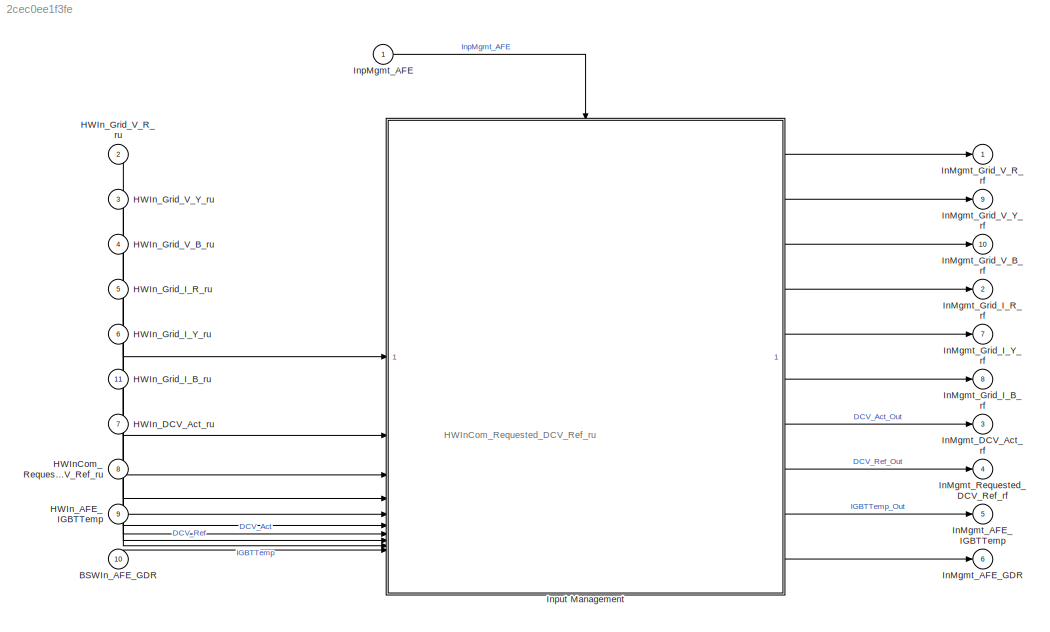
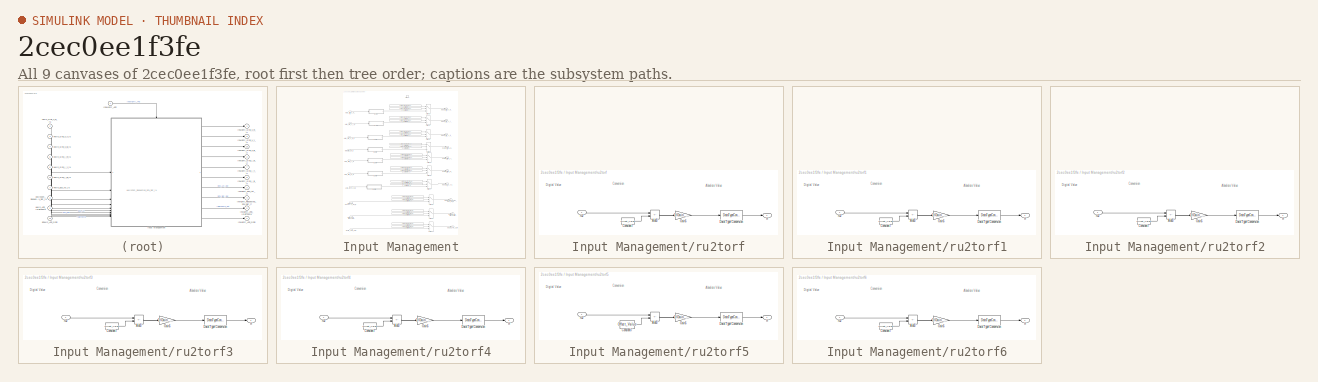
[diagram: thumbnail index - all 9 canvases of the model, root first then tree order]
MODEL slx_2cec0ee1f3fe
KIND model
BLOCK [Inport] BSWIn_AFE_GDR
  OutDataTypeStr = uint16
  Port = 10
BLOCK [Inport] HWInCom_Requested_DCV_Ref_ru
  OutDataTypeStr = uint16
  Port = 8
BLOCK [Inport] HWIn_AFE_IGBTTemp
  OutDataTypeStr = boolean
  Port = 9
BLOCK [Inport] HWIn_DCV_Act_ru
  OutDataTypeStr = uint16
  Port = 7
BLOCK [Inport] HWIn_Grid_I_B_ru
  OutDataTypeStr = uint16
  Port = 11
BLOCK [Inport] HWIn_Grid_I_R_ru
  OutDataTypeStr = uint16
  Port = 5
BLOCK [Inport] HWIn_Grid_I_Y_ru
  OutDataTypeStr = uint16
  Port = 6
BLOCK [Inport] HWIn_Grid_V_B_ru
  OutDataTypeStr = uint16
  Port = 4
BLOCK [Inport] HWIn_Grid_V_R_ru
  OutDataTypeStr = uint16
  Port = 2
BLOCK [Inport] HWIn_Grid_V_Y_ru
  OutDataTypeStr = uint16
  Port = 3
BLOCK [Outport] InMgmt_AFE_GDR
  Port = 6
  VectorParamsAs1DForOutWhenUnconnected = off
BLOCK [Outport] InMgmt_AFE_IGBTTemp
  OutDataTypeStr = boolean
  Port = 5
  VectorParamsAs1DForOutWhenUnconnected = off
BLOCK [Outport] InMgmt_DCV_Act_rf
  OutDataTypeStr = uint16
  Port = 3
  VectorParamsAs1DForOutWhenUnconnected = off
BLOCK [Outport] InMgmt_Grid_I_B_rf
  Port = 8
  VectorParamsAs1DForOutWhenUnconnected = off
BLOCK [Outport] InMgmt_Grid_I_R_rf
  Port = 2
  VectorParamsAs1DForOutWhenUnconnected = off
BLOCK [Outport] InMgmt_Grid_I_Y_rf
  Port = 7
  VectorParamsAs1DForOutWhenUnconnected = off
BLOCK [Outport] InMgmt_Grid_V_B_rf
  Port = 10
  VectorParamsAs1DForOutWhenUnconnected = off
BLOCK [Outport] InMgmt_Grid_V_R_rf
  VectorParamsAs1DForOutWhenUnconnected = off
BLOCK [Outport] InMgmt_Grid_V_Y_rf
  Port = 9
  VectorParamsAs1DForOutWhenUnconnected = off
BLOCK [Outport] InMgmt_Requested_DCV_Ref_rf
  OutDataTypeStr = uint16
  Port = 4
  VectorParamsAs1DForOutWhenUnconnected = off
BLOCK [Inport] InpMgmt_AFE
  Description = Inverter HVDC voltage
  OutMax = 1000
  OutMin = 0
  OutputFunctionCall = on
  PortDimensions = 1
  SampleTime = 0.001
  SamplingMode = Sample based
  SignalType = real
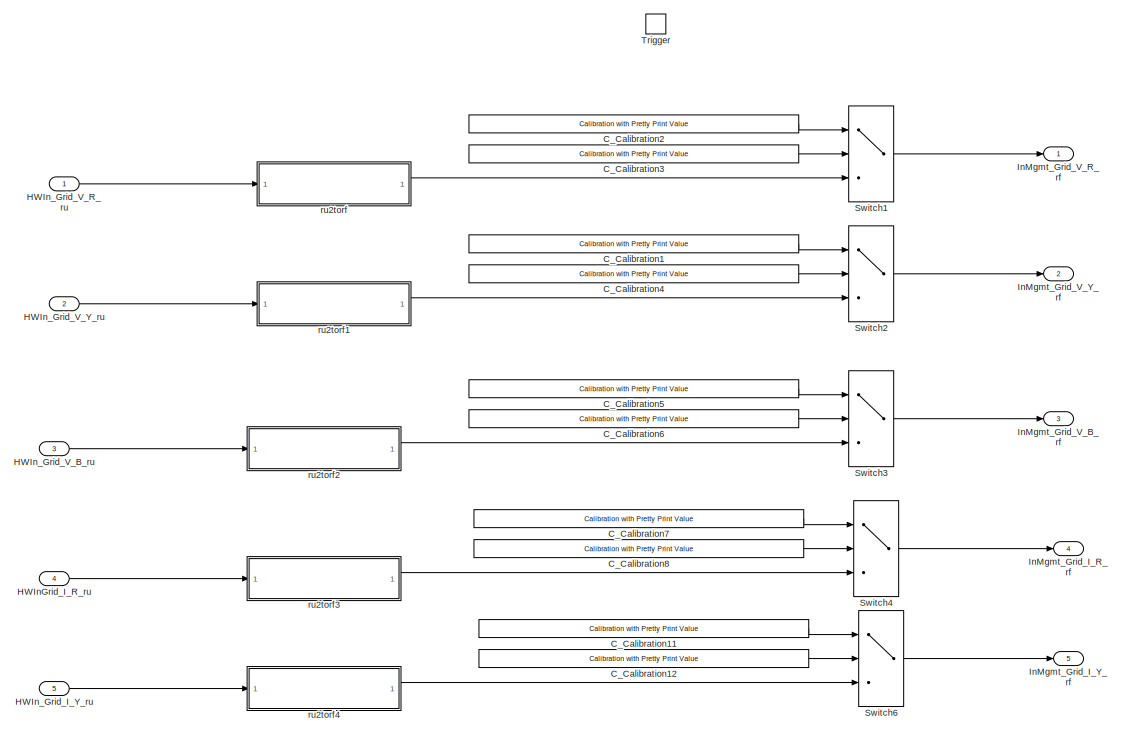
[diagram: Input Management - part 1/2, full width, top band]
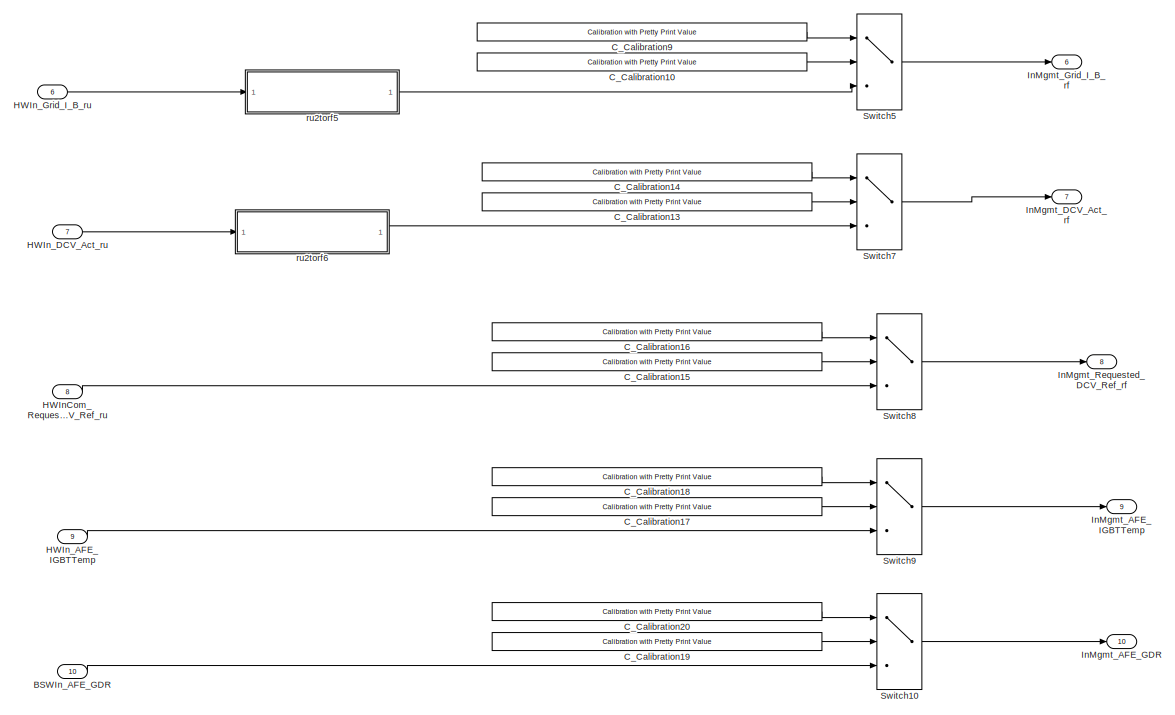
[diagram: Input Management - part 2/2, full width, bottom band]
BLOCK [SubSystem] Input Management
BLOCK [Inport] Input Management/BSWIn_AFE_GDR
  Port = 10
BLOCK [Reference] Input Management/C_Calibration1  REF=common_lib/IO/Calibration with Pretty
Print Value
  SourceBlock = common_lib/IO/Calibration with Pretty\nPrint Value
  SourceProductName = Common Library Blocks
  SourceType = Calibratible Input
BLOCK [Reference] Input Management/C_Calibration10  REF=common_lib/IO/Calibration with Pretty
Print Value
  SourceBlock = common_lib/IO/Calibration with Pretty\nPrint Value
  SourceProductName = Common Library Blocks
  SourceType = Calibratible Input
BLOCK [Reference] Input Management/C_Calibration11  REF=common_lib/IO/Calibration with Pretty
Print Value
  SourceBlock = common_lib/IO/Calibration with Pretty\nPrint Value
  SourceProductName = Common Library Blocks
  SourceType = Calibratible Input
BLOCK [Reference] Input Management/C_Calibration12  REF=common_lib/IO/Calibration with Pretty
Print Value
  SourceBlock = common_lib/IO/Calibration with Pretty\nPrint Value
  SourceProductName = Common Library Blocks
  SourceType = Calibratible Input
BLOCK [Reference] Input Management/C_Calibration13  REF=common_lib/IO/Calibration with Pretty
Print Value
  SourceBlock = common_lib/IO/Calibration with Pretty\nPrint Value
  SourceProductName = Common Library Blocks
  SourceType = Calibratible Input
BLOCK [Reference] Input Management/C_Calibration14  REF=common_lib/IO/Calibration with Pretty
Print Value
  SourceBlock = common_lib/IO/Calibration with Pretty\nPrint Value
  SourceProductName = Common Library Blocks
  SourceType = Calibratible Input
BLOCK [Reference] Input Management/C_Calibration15  REF=common_lib/IO/Calibration with Pretty
Print Value
  SourceBlock = common_lib/IO/Calibration with Pretty\nPrint Value
  SourceProductName = Common Library Blocks
  SourceType = Calibratible Input
BLOCK [Reference] Input Management/C_Calibration16  REF=common_lib/IO/Calibration with Pretty
Print Value
  SourceBlock = common_lib/IO/Calibration with Pretty\nPrint Value
  SourceProductName = Common Library Blocks
  SourceType = Calibratible Input
BLOCK [Reference] Input Management/C_Calibration17  REF=common_lib/IO/Calibration with Pretty
Print Value
  SourceBlock = common_lib/IO/Calibration with Pretty\nPrint Value
  SourceProductName = Common Library Blocks
  SourceType = Calibratible Input
BLOCK [Reference] Input Management/C_Calibration18  REF=common_lib/IO/Calibration with Pretty
Print Value
  SourceBlock = common_lib/IO/Calibration with Pretty\nPrint Value
  SourceProductName = Common Library Blocks
  SourceType = Calibratible Input
BLOCK [Reference] Input Management/C_Calibration19  REF=common_lib/IO/Calibration with Pretty
Print Value
  SourceBlock = common_lib/IO/Calibration with Pretty\nPrint Value
  SourceProductName = Common Library Blocks
  SourceType = Calibratible Input
BLOCK [Reference] Input Management/C_Calibration2  REF=common_lib/IO/Calibration with Pretty
Print Value
  SourceBlock = common_lib/IO/Calibration with Pretty\nPrint Value
  SourceProductName = Common Library Blocks
  SourceType = Calibratible Input
BLOCK [Reference] Input Management/C_Calibration20  REF=common_lib/IO/Calibration with Pretty
Print Value
  SourceBlock = common_lib/IO/Calibration with Pretty\nPrint Value
  SourceProductName = Common Library Blocks
  SourceType = Calibratible Input
BLOCK [Reference] Input Management/C_Calibration3  REF=common_lib/IO/Calibration with Pretty
Print Value
  SourceBlock = common_lib/IO/Calibration with Pretty\nPrint Value
  SourceProductName = Common Library Blocks
  SourceType = Calibratible Input
BLOCK [Reference] Input Management/C_Calibration4  REF=common_lib/IO/Calibration with Pretty
Print Value
  SourceBlock = common_lib/IO/Calibration with Pretty\nPrint Value
  SourceProductName = Common Library Blocks
  SourceType = Calibratible Input
BLOCK [Reference] Input Management/C_Calibration5  REF=common_lib/IO/Calibration with Pretty
Print Value
  SourceBlock = common_lib/IO/Calibration with Pretty\nPrint Value
  SourceProductName = Common Library Blocks
  SourceType = Calibratible Input
BLOCK [Reference] Input Management/C_Calibration6  REF=common_lib/IO/Calibration with Pretty
Print Value
  SourceBlock = common_lib/IO/Calibration with Pretty\nPrint Value
  SourceProductName = Common Library Blocks
  SourceType = Calibratible Input
BLOCK [Reference] Input Management/C_Calibration7  REF=common_lib/IO/Calibration with Pretty
Print Value
  SourceBlock = common_lib/IO/Calibration with Pretty\nPrint Value
  SourceProductName = Common Library Blocks
  SourceType = Calibratible Input
BLOCK [Reference] Input Management/C_Calibration8  REF=common_lib/IO/Calibration with Pretty
Print Value
  SourceBlock = common_lib/IO/Calibration with Pretty\nPrint Value
  SourceProductName = Common Library Blocks
  SourceType = Calibratible Input
BLOCK [Reference] Input Management/C_Calibration9  REF=common_lib/IO/Calibration with Pretty
Print Value
  SourceBlock = common_lib/IO/Calibration with Pretty\nPrint Value
  SourceProductName = Common Library Blocks
  SourceType = Calibratible Input
BLOCK [Inport] Input Management/HWInCom_Requested_DCV_Ref_ru
  Port = 8
BLOCK [Inport] Input Management/HWInGrid_I_R_ru
  Port = 4
BLOCK [Inport] Input Management/HWIn_AFE_IGBTTemp
  Port = 9
BLOCK [Inport] Input Management/HWIn_DCV_Act_ru
  Port = 7
BLOCK [Inport] Input Management/HWIn_Grid_I_B_ru
  Port = 6
BLOCK [Inport] Input Management/HWIn_Grid_I_Y_ru
  Port = 5
BLOCK [Inport] Input Management/HWIn_Grid_V_B_ru
  Port = 3
BLOCK [Inport] Input Management/HWIn_Grid_V_R_ru
BLOCK [Inport] Input Management/HWIn_Grid_V_Y_ru
  Port = 2
BLOCK [Outport] Input Management/InMgmt_AFE_GDR
  OutDataTypeStr = single
  Port = 10
BLOCK [Outport] Input Management/InMgmt_AFE_IGBTTemp
  Port = 9
BLOCK [Outport] Input Management/InMgmt_DCV_Act_rf
  Port = 7
BLOCK [Outport] Input Management/InMgmt_Grid_I_B_rf
  OutDataTypeStr = single
  Port = 6
BLOCK [Outport] Input Management/InMgmt_Grid_I_R_rf
  OutDataTypeStr = single
  Port = 4
BLOCK [Outport] Input Management/InMgmt_Grid_I_Y_rf
  OutDataTypeStr = single
  Port = 5
BLOCK [Outport] Input Management/InMgmt_Grid_V_B_rf
  OutDataTypeStr = single
  Port = 3
BLOCK [Outport] Input Management/InMgmt_Grid_V_R_rf
  OutDataTypeStr = single
BLOCK [Outport] Input Management/InMgmt_Grid_V_Y_rf
  OutDataTypeStr = single
  Port = 2
BLOCK [Outport] Input Management/InMgmt_Requested_DCV_Ref_rf
  Port = 8
BLOCK [Switch] Input Management/Switch1
  Criteria = u2 ~= 0
  InputSameDT = off
  SaturateOnIntegerOverflow = off
BLOCK [Switch] Input Management/Switch10
  Criteria = u2 ~= 0
  InputSameDT = off
  SaturateOnIntegerOverflow = off
BLOCK [Switch] Input Management/Switch2
  Criteria = u2 ~= 0
  InputSameDT = off
  SaturateOnIntegerOverflow = off
BLOCK [Switch] Input Management/Switch3
  Criteria = u2 ~= 0
  InputSameDT = off
  SaturateOnIntegerOverflow = off
BLOCK [Switch] Input Management/Switch4
  Criteria = u2 ~= 0
  InputSameDT = off
  SaturateOnIntegerOverflow = off
BLOCK [Switch] Input Management/Switch5
  Criteria = u2 ~= 0
  InputSameDT = off
  SaturateOnIntegerOverflow = off
BLOCK [Switch] Input Management/Switch6
  Criteria = u2 ~= 0
  InputSameDT = off
  SaturateOnIntegerOverflow = off
BLOCK [Switch] Input Management/Switch7
  Criteria = u2 ~= 0
  InputSameDT = off
  SaturateOnIntegerOverflow = off
BLOCK [Switch] Input Management/Switch8
  Criteria = u2 ~= 0
  InputSameDT = off
  SaturateOnIntegerOverflow = off
BLOCK [Switch] Input Management/Switch9
  Criteria = u2 ~= 0
  InputSameDT = off
  SaturateOnIntegerOverflow = off
BLOCK [TriggerPort] Input Management/Trigger
  PortDimensions = 1
  SampleTime = -1
  SampleTimeType = periodic
  StatesWhenEnabling = held
  TriggerType = function-call
  VariantControl = (inherit)
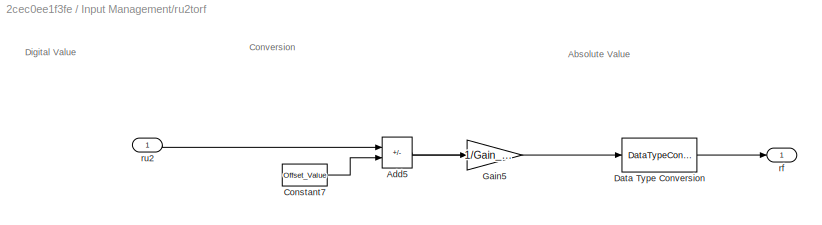
BLOCK [SubSystem] Input Management/ru2torf
  Commented = through
BLOCK [Sum] Input Management/ru2torf/Add5
  IconShape = rectangular
  Inputs = +-
BLOCK [Constant] Input Management/ru2torf/Constant7
  Value = Offset_Value
BLOCK [DataTypeConversion] Input Management/ru2torf/Data Type Conversion
  OutDataTypeStr = single
  RndMeth = Floor
  SaturateOnIntegerOverflow = off
BLOCK [Gain] Input Management/ru2torf/Gain5
  Gain = 1/Gain_Value
BLOCK [Outport] Input Management/ru2torf/rf
  OutDataTypeStr = single
BLOCK [Inport] Input Management/ru2torf/ru2
BLOCK [SubSystem] Input Management/ru2torf1
  Commented = through
BLOCK [Sum] Input Management/ru2torf1/Add5
  IconShape = rectangular
  Inputs = +-
BLOCK [Constant] Input Management/ru2torf1/Constant7
  Value = Offset_Value
BLOCK [DataTypeConversion] Input Management/ru2torf1/Data Type Conversion
  OutDataTypeStr = single
  RndMeth = Floor
  SaturateOnIntegerOverflow = off
BLOCK [Gain] Input Management/ru2torf1/Gain5
  Gain = 1/Gain_Value
BLOCK [Outport] Input Management/ru2torf1/rf
  OutDataTypeStr = single
BLOCK [Inport] Input Management/ru2torf1/ru2
BLOCK [SubSystem] Input Management/ru2torf2
  Commented = through
BLOCK [Sum] Input Management/ru2torf2/Add5
  IconShape = rectangular
  Inputs = +-
BLOCK [Constant] Input Management/ru2torf2/Constant7
  Value = Offset_Value
BLOCK [DataTypeConversion] Input Management/ru2torf2/Data Type Conversion
  OutDataTypeStr = single
  RndMeth = Floor
  SaturateOnIntegerOverflow = off
BLOCK [Gain] Input Management/ru2torf2/Gain5
  Gain = 1/Gain_Value
BLOCK [Outport] Input Management/ru2torf2/rf
  OutDataTypeStr = single
BLOCK [Inport] Input Management/ru2torf2/ru2
BLOCK [SubSystem] Input Management/ru2torf3
  Commented = through
BLOCK [Sum] Input Management/ru2torf3/Add5
  IconShape = rectangular
  Inputs = +-
BLOCK [Constant] Input Management/ru2torf3/Constant7
  Value = Offset_Value
BLOCK [DataTypeConversion] Input Management/ru2torf3/Data Type Conversion
  OutDataTypeStr = single
  RndMeth = Floor
  SaturateOnIntegerOverflow = off
BLOCK [Gain] Input Management/ru2torf3/Gain5
  Gain = 1/Gain_Value
BLOCK [Outport] Input Management/ru2torf3/rf
  OutDataTypeStr = single
BLOCK [Inport] Input Management/ru2torf3/ru2
BLOCK [SubSystem] Input Management/ru2torf4
  Commented = through
BLOCK [Sum] Input Management/ru2torf4/Add5
  IconShape = rectangular
  Inputs = +-
BLOCK [Constant] Input Management/ru2torf4/Constant7
  Value = Offset_Value
BLOCK [DataTypeConversion] Input Management/ru2torf4/Data Type Conversion
  OutDataTypeStr = single
  RndMeth = Floor
  SaturateOnIntegerOverflow = off
BLOCK [Gain] Input Management/ru2torf4/Gain5
  Gain = 1/Gain_Value
BLOCK [Outport] Input Management/ru2torf4/rf
  OutDataTypeStr = single
BLOCK [Inport] Input Management/ru2torf4/ru2
BLOCK [SubSystem] Input Management/ru2torf5
  Commented = through
BLOCK [Sum] Input Management/ru2torf5/Add5
  IconShape = rectangular
  Inputs = +-
BLOCK [Constant] Input Management/ru2torf5/Constant7
  Value = Offset_Value
BLOCK [DataTypeConversion] Input Management/ru2torf5/Data Type Conversion
  OutDataTypeStr = single
  RndMeth = Floor
  SaturateOnIntegerOverflow = off
BLOCK [Gain] Input Management/ru2torf5/Gain5
  Gain = 1/Gain_Value
BLOCK [Outport] Input Management/ru2torf5/rf
  OutDataTypeStr = single
BLOCK [Inport] Input Management/ru2torf5/ru2
BLOCK [SubSystem] Input Management/ru2torf6
  Commented = through
BLOCK [Sum] Input Management/ru2torf6/Add5
  IconShape = rectangular
  Inputs = +-
BLOCK [Constant] Input Management/ru2torf6/Constant7
  Value = Offset_Value
BLOCK [DataTypeConversion] Input Management/ru2torf6/Data Type Conversion
  OutDataTypeStr = uint16
  RndMeth = Floor
  SaturateOnIntegerOverflow = off
BLOCK [Gain] Input Management/ru2torf6/Gain5
  Gain = 1/Gain_Value
BLOCK [Outport] Input Management/ru2torf6/rf
BLOCK [Inport] Input Management/ru2torf6/ru2
ANNOTATION (root): HWInCom_Requested_DCV_Ref_ru
ANNOTATION Input Management/ru2torf: Absolute Value
ANNOTATION Input Management/ru2torf: Conversion
ANNOTATION Input Management/ru2torf: Digital Value
ANNOTATION Input Management/ru2torf1: Absolute Value
ANNOTATION Input Management/ru2torf1: Conversion
ANNOTATION Input Management/ru2torf1: Digital Value
ANNOTATION Input Management/ru2torf2: Absolute Value
ANNOTATION Input Management/ru2torf2: Conversion
ANNOTATION Input Management/ru2torf2: Digital Value
ANNOTATION Input Management/ru2torf3: Absolute Value
ANNOTATION Input Management/ru2torf3: Conversion
ANNOTATION Input Management/ru2torf3: Digital Value
ANNOTATION Input Management/ru2torf4: Absolute Value
ANNOTATION Input Management/ru2torf4: Conversion
ANNOTATION Input Management/ru2torf4: Digital Value
ANNOTATION Input Management/ru2torf5: Absolute Value
ANNOTATION Input Management/ru2torf5: Conversion
ANNOTATION Input Management/ru2torf5: Digital Value
ANNOTATION Input Management/ru2torf6: Absolute Value
ANNOTATION Input Management/ru2torf6: Conversion
ANNOTATION Input Management/ru2torf6: Digital Value
LINE BSWIn_AFE_GDR:1 -> Input Management:10
LINE HWInCom_Requested_DCV_Ref_ru:1 -> Input Management:8
LINE HWIn_AFE_IGBTTemp:1 -> Input Management:9
LINE HWIn_DCV_Act_ru:1 -> Input Management:7
LINE HWIn_Grid_I_B_ru:1 -> Input Management:6
LINE HWIn_Grid_I_R_ru:1 -> Input Management:4
LINE HWIn_Grid_I_Y_ru:1 -> Input Management:5
LINE HWIn_Grid_V_B_ru:1 -> Input Management:3
LINE HWIn_Grid_V_R_ru:1 -> Input Management:1
LINE HWIn_Grid_V_Y_ru:1 -> Input Management:2
LINE InpMgmt_AFE:1 -> Input Management:trigger
LINE Input Management/BSWIn_AFE_GDR:1 -> Input Management/Switch10:3
LINE Input Management/C_Calibration10:1 -> Input Management/Switch5:2
LINE Input Management/C_Calibration11:1 -> Input Management/Switch6:1
LINE Input Management/C_Calibration12:1 -> Input Management/Switch6:2
LINE Input Management/C_Calibration13:1 -> Input Management/Switch7:2
LINE Input Management/C_Calibration14:1 -> Input Management/Switch7:1
LINE Input Management/C_Calibration15:1 -> Input Management/Switch8:2
LINE Input Management/C_Calibration16:1 -> Input Management/Switch8:1
LINE Input Management/C_Calibration17:1 -> Input Management/Switch9:2
LINE Input Management/C_Calibration18:1 -> Input Management/Switch9:1
LINE Input Management/C_Calibration19:1 -> Input Management/Switch10:2
LINE Input Management/C_Calibration1:1 -> Input Management/Switch2:1
LINE Input Management/C_Calibration20:1 -> Input Management/Switch10:1
LINE Input Management/C_Calibration2:1 -> Input Management/Switch1:1
LINE Input Management/C_Calibration3:1 -> Input Management/Switch1:2
LINE Input Management/C_Calibration4:1 -> Input Management/Switch2:2
LINE Input Management/C_Calibration5:1 -> Input Management/Switch3:1
LINE Input Management/C_Calibration6:1 -> Input Management/Switch3:2
LINE Input Management/C_Calibration7:1 -> Input Management/Switch4:1
LINE Input Management/C_Calibration8:1 -> Input Management/Switch4:2
LINE Input Management/C_Calibration9:1 -> Input Management/Switch5:1
LINE Input Management/HWInCom_Requested_DCV_Ref_ru:1 -> Input Management/Switch8:3
LINE Input Management/HWInGrid_I_R_ru:1 -> Input Management/ru2torf3:1
LINE Input Management/HWIn_AFE_IGBTTemp:1 -> Input Management/Switch9:3
LINE Input Management/HWIn_DCV_Act_ru:1 -> Input Management/ru2torf6:1
LINE Input Management/HWIn_Grid_I_B_ru:1 -> Input Management/ru2torf5:1
LINE Input Management/HWIn_Grid_I_Y_ru:1 -> Input Management/ru2torf4:1
LINE Input Management/HWIn_Grid_V_B_ru:1 -> Input Management/ru2torf2:1
LINE Input Management/HWIn_Grid_V_R_ru:1 -> Input Management/ru2torf:1
LINE Input Management/HWIn_Grid_V_Y_ru:1 -> Input Management/ru2torf1:1
LINE Input Management/Switch10:1 -> Input Management/InMgmt_AFE_GDR:1
LINE Input Management/Switch1:1 -> Input Management/InMgmt_Grid_V_R_rf:1
LINE Input Management/Switch2:1 -> Input Management/InMgmt_Grid_V_Y_rf:1
LINE Input Management/Switch3:1 -> Input Management/InMgmt_Grid_V_B_rf:1
LINE Input Management/Switch4:1 -> Input Management/InMgmt_Grid_I_R_rf:1
LINE Input Management/Switch5:1 -> Input Management/InMgmt_Grid_I_B_rf:1
LINE Input Management/Switch6:1 -> Input Management/InMgmt_Grid_I_Y_rf:1
LINE Input Management/Switch7:1 -> Input Management/InMgmt_DCV_Act_rf:1
LINE Input Management/Switch8:1 -> Input Management/InMgmt_Requested_DCV_Ref_rf:1
LINE Input Management/Switch9:1 -> Input Management/InMgmt_AFE_IGBTTemp:1
LINE Input Management/ru2torf/Add5:1 -> Input Management/ru2torf/Gain5:1
LINE Input Management/ru2torf/Constant7:1 -> Input Management/ru2torf/Add5:2
LINE Input Management/ru2torf/Data Type Conversion:1 -> Input Management/ru2torf/rf:1
LINE Input Management/ru2torf/Gain5:1 -> Input Management/ru2torf/Data Type Conversion:1
LINE Input Management/ru2torf/ru2:1 -> Input Management/ru2torf/Add5:1
LINE Input Management/ru2torf1/Add5:1 -> Input Management/ru2torf1/Gain5:1
LINE Input Management/ru2torf1/Constant7:1 -> Input Management/ru2torf1/Add5:2
LINE Input Management/ru2torf1/Data Type Conversion:1 -> Input Management/ru2torf1/rf:1
LINE Input Management/ru2torf1/Gain5:1 -> Input Management/ru2torf1/Data Type Conversion:1
LINE Input Management/ru2torf1/ru2:1 -> Input Management/ru2torf1/Add5:1
LINE Input Management/ru2torf1:1 -> Input Management/Switch2:3
LINE Input Management/ru2torf2/Add5:1 -> Input Management/ru2torf2/Gain5:1
LINE Input Management/ru2torf2/Constant7:1 -> Input Management/ru2torf2/Add5:2
LINE Input Management/ru2torf2/Data Type Conversion:1 -> Input Management/ru2torf2/rf:1
LINE Input Management/ru2torf2/Gain5:1 -> Input Management/ru2torf2/Data Type Conversion:1
LINE Input Management/ru2torf2/ru2:1 -> Input Management/ru2torf2/Add5:1
LINE Input Management/ru2torf2:1 -> Input Management/Switch3:3
LINE Input Management/ru2torf3/Add5:1 -> Input Management/ru2torf3/Gain5:1
LINE Input Management/ru2torf3/Constant7:1 -> Input Management/ru2torf3/Add5:2
LINE Input Management/ru2torf3/Data Type Conversion:1 -> Input Management/ru2torf3/rf:1
LINE Input Management/ru2torf3/Gain5:1 -> Input Management/ru2torf3/Data Type Conversion:1
LINE Input Management/ru2torf3/ru2:1 -> Input Management/ru2torf3/Add5:1
LINE Input Management/ru2torf3:1 -> Input Management/Switch4:3
LINE Input Management/ru2torf4/Add5:1 -> Input Management/ru2torf4/Gain5:1
LINE Input Management/ru2torf4/Constant7:1 -> Input Management/ru2torf4/Add5:2
LINE Input Management/ru2torf4/Data Type Conversion:1 -> Input Management/ru2torf4/rf:1
LINE Input Management/ru2torf4/Gain5:1 -> Input Management/ru2torf4/Data Type Conversion:1
LINE Input Management/ru2torf4/ru2:1 -> Input Management/ru2torf4/Add5:1
LINE Input Management/ru2torf4:1 -> Input Management/Switch6:3
LINE Input Management/ru2torf5/Add5:1 -> Input Management/ru2torf5/Gain5:1
LINE Input Management/ru2torf5/Constant7:1 -> Input Management/ru2torf5/Add5:2
LINE Input Management/ru2torf5/Data Type Conversion:1 -> Input Management/ru2torf5/rf:1
LINE Input Management/ru2torf5/Gain5:1 -> Input Management/ru2torf5/Data Type Conversion:1
LINE Input Management/ru2torf5/ru2:1 -> Input Management/ru2torf5/Add5:1
LINE Input Management/ru2torf5:1 -> Input Management/Switch5:3
LINE Input Management/ru2torf6/Add5:1 -> Input Management/ru2torf6/Gain5:1
LINE Input Management/ru2torf6/Constant7:1 -> Input Management/ru2torf6/Add5:2
LINE Input Management/ru2torf6/Data Type Conversion:1 -> Input Management/ru2torf6/rf:1
LINE Input Management/ru2torf6/Gain5:1 -> Input Management/ru2torf6/Data Type Conversion:1
LINE Input Management/ru2torf6/ru2:1 -> Input Management/ru2torf6/Add5:1
LINE Input Management/ru2torf6:1 -> Input Management/Switch7:3
LINE Input Management/ru2torf:1 -> Input Management/Switch1:3
LINE Input Management:1 -> InMgmt_Grid_V_R_rf:1
LINE Input Management:10 -> InMgmt_AFE_GDR:1
LINE Input Management:2 -> InMgmt_Grid_V_Y_rf:1
LINE Input Management:3 -> InMgmt_Grid_V_B_rf:1
LINE Input Management:4 -> InMgmt_Grid_I_R_rf:1
LINE Input Management:5 -> InMgmt_Grid_I_Y_rf:1
LINE Input Management:6 -> InMgmt_Grid_I_B_rf:1
LINE Input Management:7 -> InMgmt_DCV_Act_rf:1
LINE Input Management:8 -> InMgmt_Requested_DCV_Ref_rf:1
LINE Input Management:9 -> InMgmt_AFE_IGBTTemp:1
CHART Test Sequence states=4 transitions=4
  STATE_LABEL "BUCK_Diagc_INIT\ncoder.extrinsic('assignin');\ncoder.extrinsic('getSection');\ncoder.extrinsic('set_param');\ncoder.extrinsic('get_param');\ncoder.extrinsic('Simulink.data.dictionary.open');\ncoder.extrinsic('discardChanges');\nSWCDictonary = Simulink.data.dictionary.open('SWC_InpMgmt_AFE.sldd');\nmodelData = getSection(SWCDictonary,'Design Data');\nmodelWorkSpace = get_param('SWC_InpMgmt_AFE','ModelWorksp...<+340ch>"
  STATE_LABEL 'BUCK_Diagc_INIT_SetValues\nHWIn_DCV_Act_ru=uint16(2149);'
  STATE_LABEL "BUCK_Diagc_INIT_VerifyOutputs\nHWIn_DCV_Act_ru=uint16(2149);\nverify(InMgmt_DCV_Act_rf==uint16(2149),'TestCase:BUCK_Diagc_INIT_VerifyOutputs_Verify1','Current Output Value:InMgmt_DCV_Act_rf = %d',single(InMgmt_DCV_Act_rf));\nendTest = true;"
  STATE_LABEL '[\nafter(400,msec)\n]'
  STATE_LABEL 'BUCK_Diagc_INIT_SetValues\nHWIn_DCV_Act_ru=uint16(2149);'
  STATE_LABEL "BUCK_Diagc_INIT_VerifyOutputs\nHWIn_DCV_Act_ru=uint16(2149);\nverify(InMgmt_DCV_Act_rf==uint16(2149),'TestCase:BUCK_Diagc_INIT_VerifyOutputs_Verify1','Current Output Value:InMgmt_DCV_Act_rf = %d',single(InMgmt_DCV_Act_rf));\nendTest = true;"
  STATE_LABEL "Terminate\nendTest = false;\ndiscardChanges(SWCDictonary);\nset_param('Inmgmt','SimulationCommand','stop');"
CHART Test Sequence states=10 transitions=10
  STATE_LABEL "InMgmt_AFE_INIT\ncoder.extrinsic('assignin');\ncoder.extrinsic('getSection');\ncoder.extrinsic('set_param');\ncoder.extrinsic('get_param');\ncoder.extrinsic('Simulink.data.dictionary.open');\ncoder.extrinsic('discardChanges');\nSWCDictonary = Simulink.data.dictionary.open('SWC_InpMgmt_AFE.sldd');\nmodelData = getSection(SWCDictonary,'Design Data');\nmodelWorkSpace = get_param('SWC_InpMgmt_AFE','ModelWorksp...<+340ch>"
  STATE_LABEL 'InMgmt_AFE_INIT_SetValues\nHWIn_DCV_Act_ru=uint16(2149);'
  STATE_LABEL "InMgmt_AFE_INIT_VerifyOutputs\nHWIn_DCV_Act_ru=uint16(2149);\nverify(InMgmt_DCV_Act_rf==uint16(2149),'TestCase:InMgmt_AFE_INIT_VerifyOutputs_Verify1','Current Output Value:InMgmt_DCV_Act_rf = %d',single(InMgmt_DCV_Act_rf));\nendTest = true;"
  STATE_LABEL '[\nafter(40,msec)\n]'
  STATE_LABEL 'InMgmt_AFE_INIT_SetValues\nHWIn_DCV_Act_ru=uint16(2149);'
  STATE_LABEL "InMgmt_AFE_INIT_VerifyOutputs\nHWIn_DCV_Act_ru=uint16(2149);\nverify(InMgmt_DCV_Act_rf==uint16(2149),'TestCase:InMgmt_AFE_INIT_VerifyOutputs_Verify1','Current Output Value:InMgmt_DCV_Act_rf = %d',single(InMgmt_DCV_Act_rf));\nendTest = true;"
  STATE_LABEL 'InMgmt_AFE_RefDCV\nendTest = false;\nHWIn_Grid_V_R_ru=uint16(220);\nHWIn_Grid_V_Y_ru=uint16(220);\nHWIn_Grid_V_B_ru=uint16(220);\nHWIn_Grid_I_R_ru=uint16(220);\nHWIn_Grid_I_Y_ru=uint16(220);\nHWIn_Grid_I_B_ru=uint16(440);\nHWIn_DCV_Act_ru=uint16(440);\nHWInCom_Requested_DCV_Ref_ru=uint16(0);\nHWIn_AFE_IGBTTemp=false;\nBSWIn_AFE_GDR=uint16(0);\n\nendTest = false;'
  STATE_LABEL 'InMgmt_AFE_RefDCV_SetValues\nHWInCom_Requested_DCV_Ref_ru=uint16(25);'
  STATE_LABEL "InMgmt_AFE_RefDCV_VerifyOutputs\nHWInCom_Requested_DCV_Ref_ru=uint16(25);\nverify(InMgmt_Requested_DCV_Ref_rf==uint16(25),'TestCase:InMgmt_AFE_RefDCV_VerifyOutputs_Verify1','Current Output Value:InMgmt_Requested_DCV_Ref_rf = %d',single(InMgmt_Requested_DCV_Ref_rf));\nendTest = true;"
  STATE_LABEL '[\nafter(40,msec)\n]'
  STATE_LABEL 'InMgmt_AFE_RefDCV_SetValues\nHWInCom_Requested_DCV_Ref_ru=uint16(25);'
  STATE_LABEL "InMgmt_AFE_RefDCV_VerifyOutputs\nHWInCom_Requested_DCV_Ref_ru=uint16(25);\nverify(InMgmt_Requested_DCV_Ref_rf==uint16(25),'TestCase:InMgmt_AFE_RefDCV_VerifyOutputs_Verify1','Current Output Value:InMgmt_Requested_DCV_Ref_rf = %d',single(InMgmt_Requested_DCV_Ref_rf));\nendTest = true;"
  STATE_LABEL 'InMgmt_AFE_IGBTTemp\nendTest = false;\nHWIn_Grid_V_R_ru=uint16(220);\nHWIn_Grid_V_Y_ru=uint16(220);\nHWIn_Grid_V_B_ru=uint16(220);\nHWIn_Grid_I_R_ru=uint16(220);\nHWIn_Grid_I_Y_ru=uint16(220);\nHWIn_Grid_I_B_ru=uint16(440);\nHWIn_DCV_Act_ru=uint16(440);\nHWInCom_Requested_DCV_Ref_ru=uint16(0);\nHWIn_AFE_IGBTTemp=false;\nBSWIn_AFE_GDR=uint16(0);\n\nendTest = false;'
  STATE_LABEL 'InMgmt_AFE_IGBTTemp_SetValues\nHWIn_AFE_IGBTTemp=true;'
  STATE_LABEL "InMgmt_AFE_IGBTTemp_VerifyOutputs\nHWIn_AFE_IGBTTemp=true;\nverify(InMgmt_AFE_IGBTTemp==false,'TestCase:InMgmt_AFE_IGBTTemp_VerifyOutputs_Verify1','Current Output Value:InMgmt_AFE_IGBTTemp = %d',single(InMgmt_AFE_IGBTTemp));\nendTest = true;"
  STATE_LABEL '[\nafter(40,msec)\n]'
  STATE_LABEL 'InMgmt_AFE_IGBTTemp_SetValues\nHWIn_AFE_IGBTTemp=true;'
  STATE_LABEL "InMgmt_AFE_IGBTTemp_VerifyOutputs\nHWIn_AFE_IGBTTemp=true;\nverify(InMgmt_AFE_IGBTTemp==false,'TestCase:InMgmt_AFE_IGBTTemp_VerifyOutputs_Verify1','Current Output Value:InMgmt_AFE_IGBTTemp = %d',single(InMgmt_AFE_IGBTTemp));\nendTest = true;"
  STATE_LABEL "Terminate\nendTest = false;\ndiscardChanges(SWCDictonary);\nset_param('InpMgmt_AFE','SimulationCommand','stop');"
